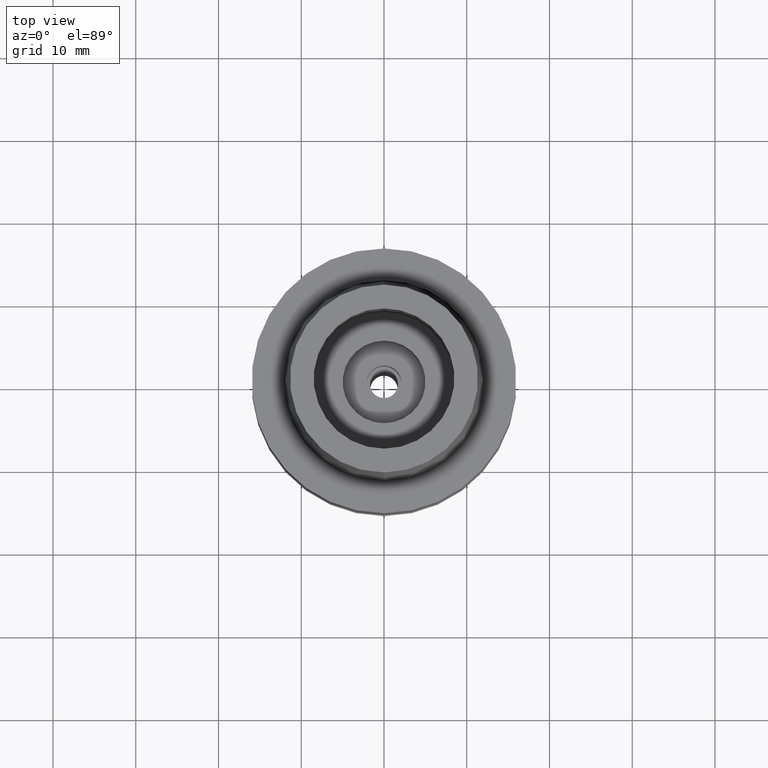
[diagram: clean part render]
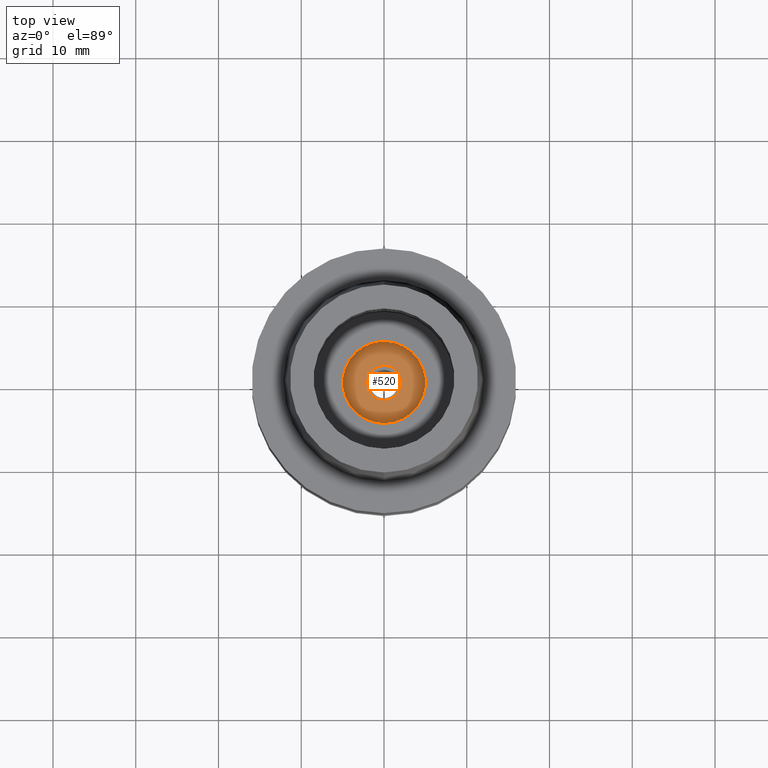
[diagram: same view with one face highlighted and labeled with its STEP entity id]
A machine part, top view. The second image highlights one B-rep face of the part: STEP entity #520.
In plain terms, the highlighted planar face has unit normal (0, 0, -1).
Its self-contained STEP definition (entity closure, byte-faithful):
#60 = CARTESIAN_POINT ( 'NONE',  ( 0.0000000000000000000, 0.0000000000000000000, -13.95000000000000107 ) ) ;
#87 = ORIENTED_EDGE ( 'NONE', *, *, #880, .F. ) ;
#169 = DIRECTION ( 'NONE',  ( 0.0000000000000000000, 0.0000000000000000000, 1.000000000000000000 ) ) ;
#302 = DIRECTION ( 'NONE',  ( 0.0000000000000000000, 0.0000000000000000000, -1.000000000000000000 ) ) ;
#306 = VERTEX_POINT ( 'NONE', #975 ) ;
#328 = DIRECTION ( 'NONE',  ( 0.0000000000000000000, 0.0000000000000000000, -1.000000000000000000 ) ) ;
#340 = DIRECTION ( 'NONE',  ( 0.0000000000000000000, 1.000000000000000000, 0.0000000000000000000 ) ) ;
#374 = CARTESIAN_POINT ( 'NONE',  ( 0.0000000000000000000, 0.0000000000000000000, -13.95000000000000107 ) ) ;
#520 = ADVANCED_FACE ( 'NONE', ( #954, #2400 ), #1570, .F. ) ;
#575 = VERTEX_POINT ( 'NONE', #1891 ) ;
#607 = AXIS2_PLACEMENT_3D ( 'NONE', #374, #169, #340 ) ;
#609 = EDGE_CURVE ( 'NONE', #306, #575, #1885, .T. ) ;
#806 = EDGE_LOOP ( 'NONE', ( #87, #2673 ) ) ;
#880 = EDGE_CURVE ( 'NONE', #1595, #2390, #1928, .T. ) ;
#954 = FACE_OUTER_BOUND ( 'NONE', #1017, .T. ) ;
#975 = CARTESIAN_POINT ( 'NONE',  ( 0.0000000000000000000, 5.000000000000000000, -13.95000000000000107 ) ) ;
#1017 = EDGE_LOOP ( 'NONE', ( #1123, #1131 ) ) ;
#1084 = CARTESIAN_POINT ( 'NONE',  ( 0.0000000000000000000, -2.100000000000000089, -13.95000000000000107 ) ) ;
#1123 = ORIENTED_EDGE ( 'NONE', *, *, #609, .F. ) ;
#1131 = ORIENTED_EDGE ( 'NONE', *, *, #1794, .F. ) ;
#1144 = DIRECTION ( 'NONE',  ( 0.0000000000000000000, -1.000000000000000000, 0.0000000000000000000 ) ) ;
#1158 = CARTESIAN_POINT ( 'NONE',  ( 0.0000000000000000000, 2.100000000000000089, -13.95000000000000107 ) ) ;
#1171 = DIRECTION ( 'NONE',  ( 0.0000000000000000000, -1.000000000000000000, 0.0000000000000000000 ) ) ;
#1345 = CARTESIAN_POINT ( 'NONE',  ( 0.0000000000000000000, 0.0000000000000000000, -13.95000000000000107 ) ) ;
#1397 = AXIS2_PLACEMENT_3D ( 'NONE', #1345, #302, #1144 ) ;
#1526 = DIRECTION ( 'NONE',  ( 0.0000000000000000000, 1.000000000000000000, 0.0000000000000000000 ) ) ;
#1570 = PLANE ( 'NONE',  #1397 ) ;
#1590 = DIRECTION ( 'NONE',  ( 0.0000000000000000000, -1.000000000000000000, 0.0000000000000000000 ) ) ;
#1595 = VERTEX_POINT ( 'NONE', #1158 ) ;
#1736 = DIRECTION ( 'NONE',  ( 0.0000000000000000000, 0.0000000000000000000, -1.000000000000000000 ) ) ;
#1794 = EDGE_CURVE ( 'NONE', #575, #306, #1949, .T. ) ;
#1885 = CIRCLE ( 'NONE', #2182, 5.000000000000000000 ) ;
#1891 = CARTESIAN_POINT ( 'NONE',  ( 0.0000000000000000000, -5.000000000000000000, -13.95000000000000107 ) ) ;
#1928 = CIRCLE ( 'NONE', #607, 2.100000000000000089 ) ;
#1949 = CIRCLE ( 'NONE', #2374, 5.000000000000000000 ) ;
#2014 = EDGE_CURVE ( 'NONE', #2390, #1595, #2458, .T. ) ;
#2177 = CARTESIAN_POINT ( 'NONE',  ( 0.0000000000000000000, 0.0000000000000000000, -13.95000000000000107 ) ) ;
#2182 = AXIS2_PLACEMENT_3D ( 'NONE', #60, #1736, #1526 ) ;
#2203 = AXIS2_PLACEMENT_3D ( 'NONE', #2177, #2217, #1590 ) ;
#2217 = DIRECTION ( 'NONE',  ( 0.0000000000000000000, 0.0000000000000000000, 1.000000000000000000 ) ) ;
#2374 = AXIS2_PLACEMENT_3D ( 'NONE', #2655, #328, #1171 ) ;
#2390 = VERTEX_POINT ( 'NONE', #1084 ) ;
#2400 = FACE_BOUND ( 'NONE', #806, .T. ) ;
#2458 = CIRCLE ( 'NONE', #2203, 2.100000000000000089 ) ;
#2655 = CARTESIAN_POINT ( 'NONE',  ( 0.0000000000000000000, 0.0000000000000000000, -13.95000000000000107 ) ) ;
#2673 = ORIENTED_EDGE ( 'NONE', *, *, #2014, .F. ) ;